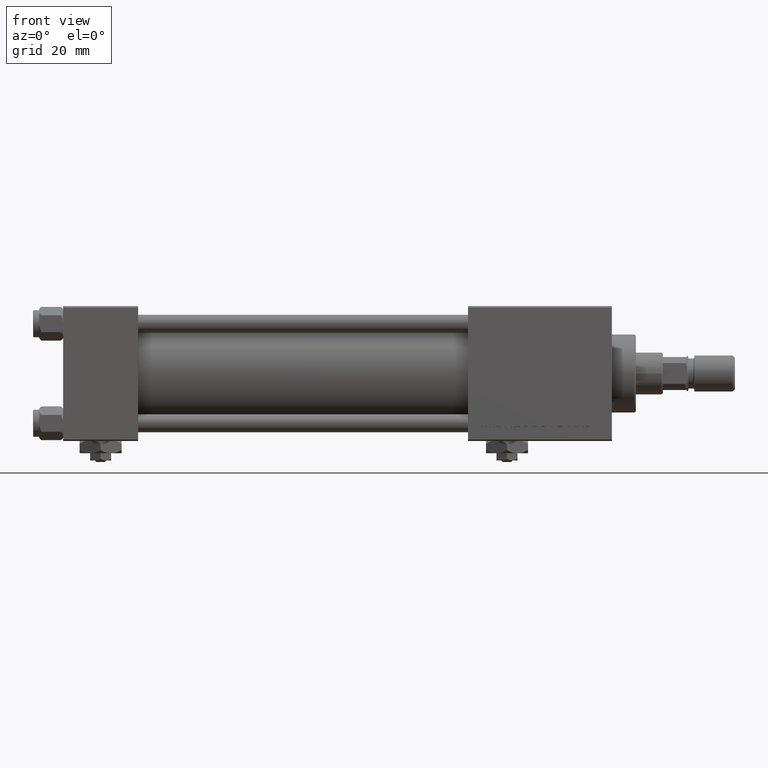
[diagram: clean part render]
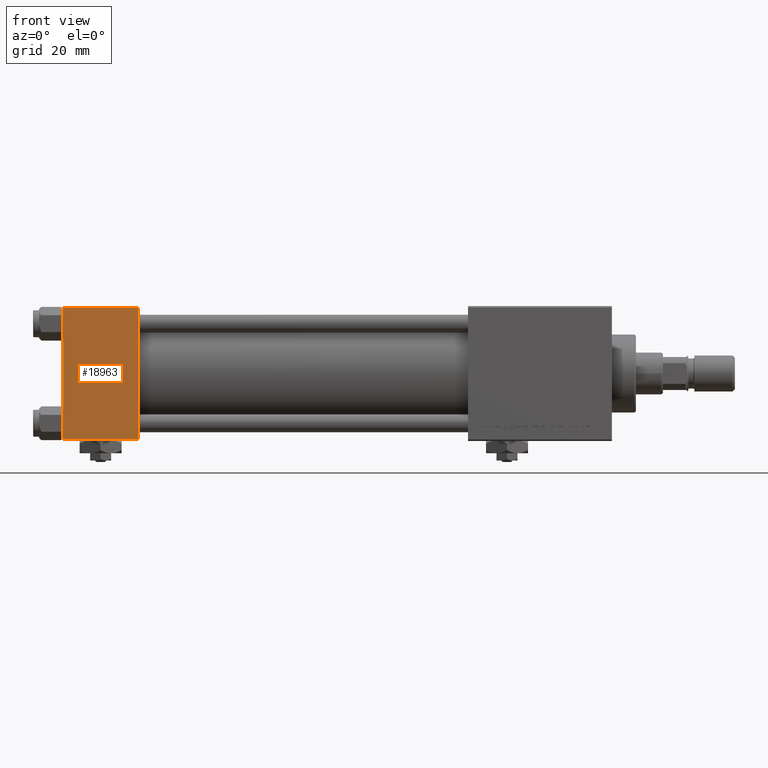
[diagram: same view with one face highlighted and labeled with its STEP entity id]
A machine part, front view. The second image highlights one B-rep face of the part: STEP entity #18963.
In plain terms, the highlighted planar face has unit normal (0, 1, 0).
Its self-contained STEP definition (entity closure, byte-faithful):
#916 = ORIENTED_EDGE ( 'NONE', *, *, #2455, .T. ) ;
#1474 = CARTESIAN_POINT ( 'NONE',  ( 0.000000000000000000, -22.50000000000000000, 22.50000000000000000 ) ) ;
#2252 = DIRECTION ( 'NONE',  ( -0.000000000000000000, 1.000000000000000000, 0.000000000000000000 ) ) ;
#2335 = DIRECTION ( 'NONE',  ( -1.000000000000000000, 0.000000000000000000, 0.000000000000000000 ) ) ;
#2455 = EDGE_CURVE ( 'NONE', #36700, #7714, #38377, .T. ) ;
#4340 = VECTOR ( 'NONE', #2335, 1000.000000000000000 ) ;
#5727 = DIRECTION ( 'NONE',  ( 0.000000000000000000, 0.000000000000000000, -1.000000000000000000 ) ) ;
#6593 = CARTESIAN_POINT ( 'NONE',  ( 25.00000000000000000, -22.50000000000000000, 22.00000000000000000 ) ) ;
#6615 = CARTESIAN_POINT ( 'NONE',  ( 25.00000000000000000, -22.50000000000000000, -21.99999999999998579 ) ) ;
#7438 = DIRECTION ( 'NONE',  ( 0.000000000000000000, 0.000000000000000000, -1.000000000000000000 ) ) ;
#7714 = VERTEX_POINT ( 'NONE', #27753 ) ;
#8131 = ORIENTED_EDGE ( 'NONE', *, *, #26345, .T. ) ;
#11169 = LINE ( 'NONE', #43776, #51489 ) ;
#12652 = CARTESIAN_POINT ( 'NONE',  ( 25.00000000000000000, -22.50000000000000000, 22.00000000000000000 ) ) ;
#13643 = DIRECTION ( 'NONE',  ( 1.000000000000000000, 0.000000000000000000, 0.000000000000000000 ) ) ;
#17401 = VERTEX_POINT ( 'NONE', #42157 ) ;
#17985 = FACE_OUTER_BOUND ( 'NONE', #23063, .T. ) ;
#18963 = ADVANCED_FACE ( 'NONE', ( #17985 ), #42314, .F. ) ;
#20408 = VERTEX_POINT ( 'NONE', #24517 ) ;
#23063 = EDGE_LOOP ( 'NONE', ( #8131, #27549, #24337, #916 ) ) ;
#24337 = ORIENTED_EDGE ( 'NONE', *, *, #52006, .F. ) ;
#24517 = CARTESIAN_POINT ( 'NONE',  ( 0.000000000000000000, -22.50000000000000000, -21.99999999999997158 ) ) ;
#24836 = VECTOR ( 'NONE', #5727, 1000.000000000000000 ) ;
#26027 = LINE ( 'NONE', #1474, #24836 ) ;
#26345 = EDGE_CURVE ( 'NONE', #7714, #20408, #26027, .T. ) ;
#27549 = ORIENTED_EDGE ( 'NONE', *, *, #51458, .T. ) ;
#27567 = VECTOR ( 'NONE', #13643, 1000.000000000000000 ) ;
#27753 = CARTESIAN_POINT ( 'NONE',  ( 0.000000000000000000, -22.50000000000000000, 22.00000000000000000 ) ) ;
#31087 = CARTESIAN_POINT ( 'NONE',  ( 25.00000000000000000, -22.50000000000000000, 22.50000000000000000 ) ) ;
#35350 = DIRECTION ( 'NONE',  ( 0.000000000000000000, -0.000000000000000000, 1.000000000000000000 ) ) ;
#36700 = VERTEX_POINT ( 'NONE', #12652 ) ;
#38377 = LINE ( 'NONE', #6593, #4340 ) ;
#40795 = AXIS2_PLACEMENT_3D ( 'NONE', #31087, #2252, #35350 ) ;
#42157 = CARTESIAN_POINT ( 'NONE',  ( 25.00000000000000000, -22.50000000000000000, -21.99999999999997158 ) ) ;
#42314 = PLANE ( 'NONE',  #40795 ) ;
#43776 = CARTESIAN_POINT ( 'NONE',  ( 25.00000000000000000, -22.50000000000000000, 22.50000000000000000 ) ) ;
#49189 = LINE ( 'NONE', #6615, #27567 ) ;
#51458 = EDGE_CURVE ( 'NONE', #20408, #17401, #49189, .T. ) ;
#51489 = VECTOR ( 'NONE', #7438, 1000.000000000000000 ) ;
#52006 = EDGE_CURVE ( 'NONE', #36700, #17401, #11169, .T. ) ;